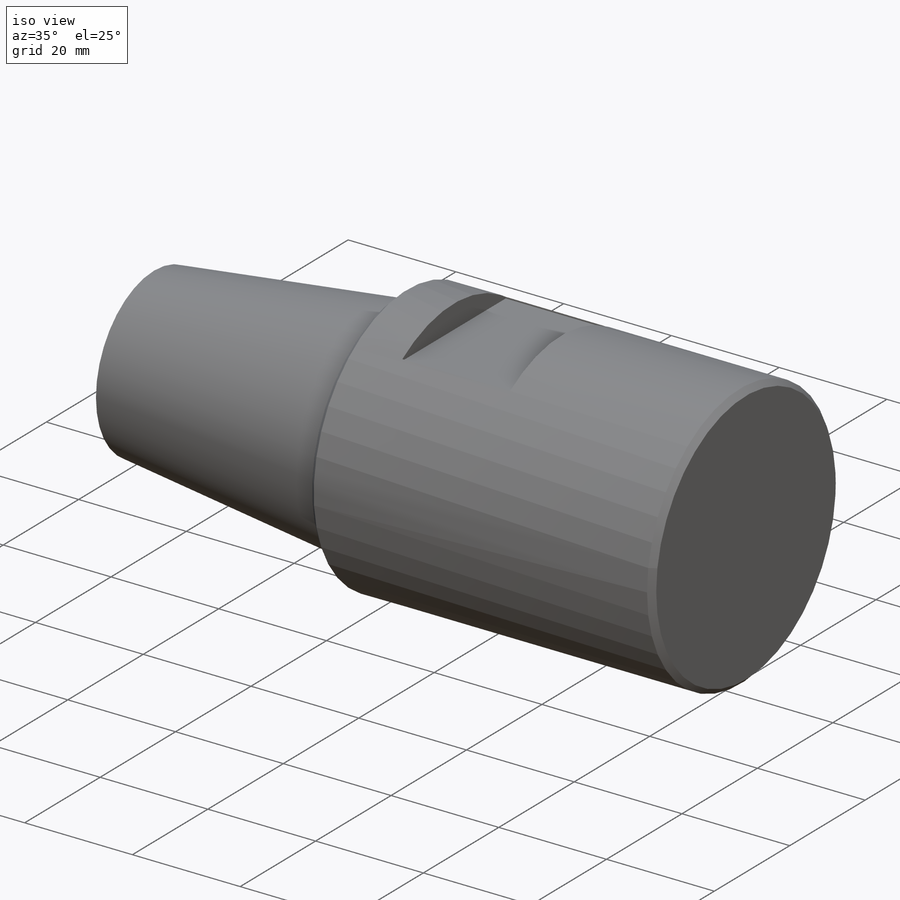
[diagram: iso view]
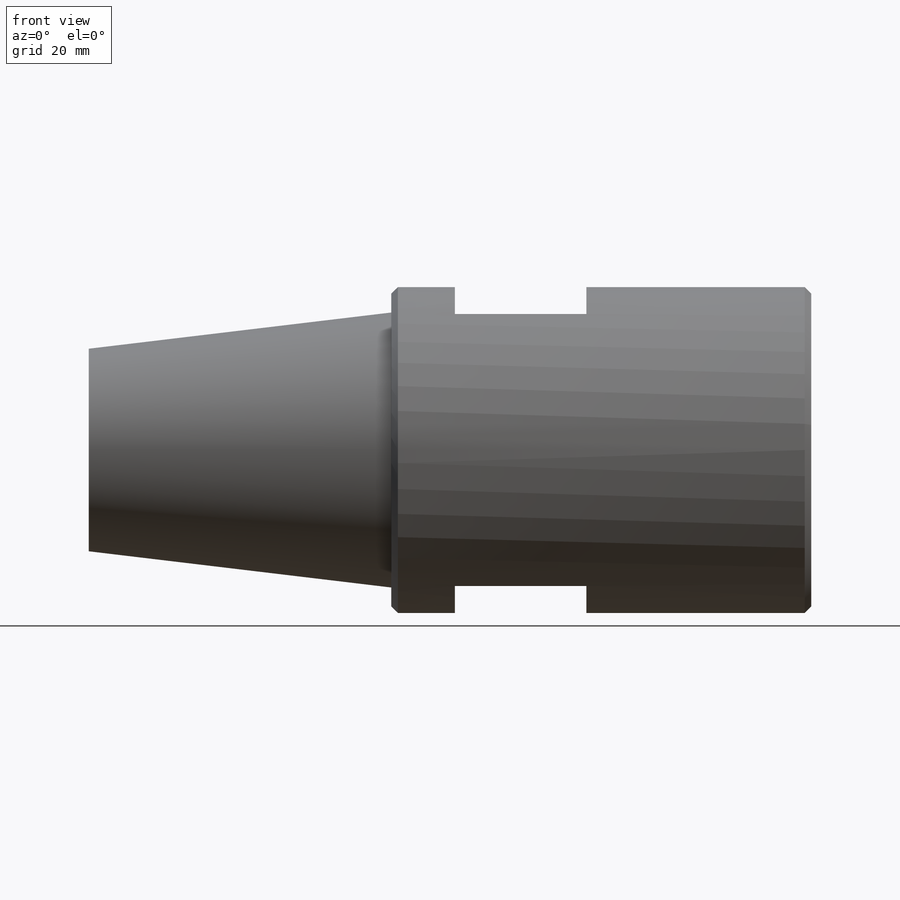
[diagram: front view]
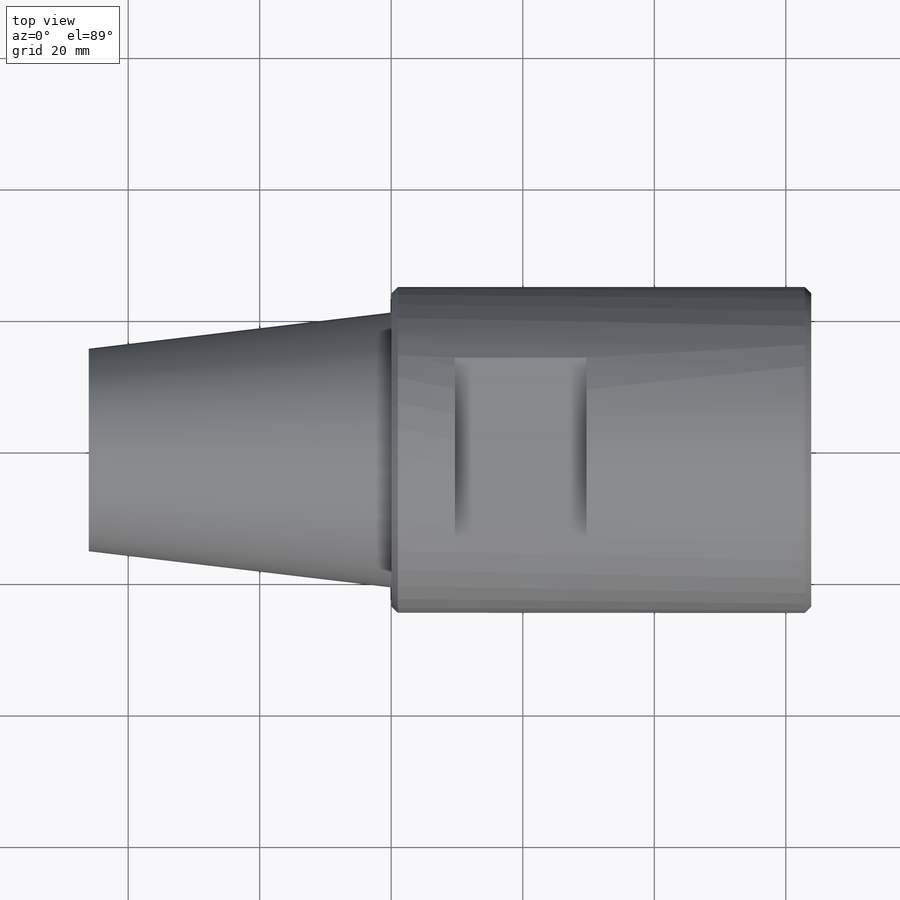
[diagram: top view]
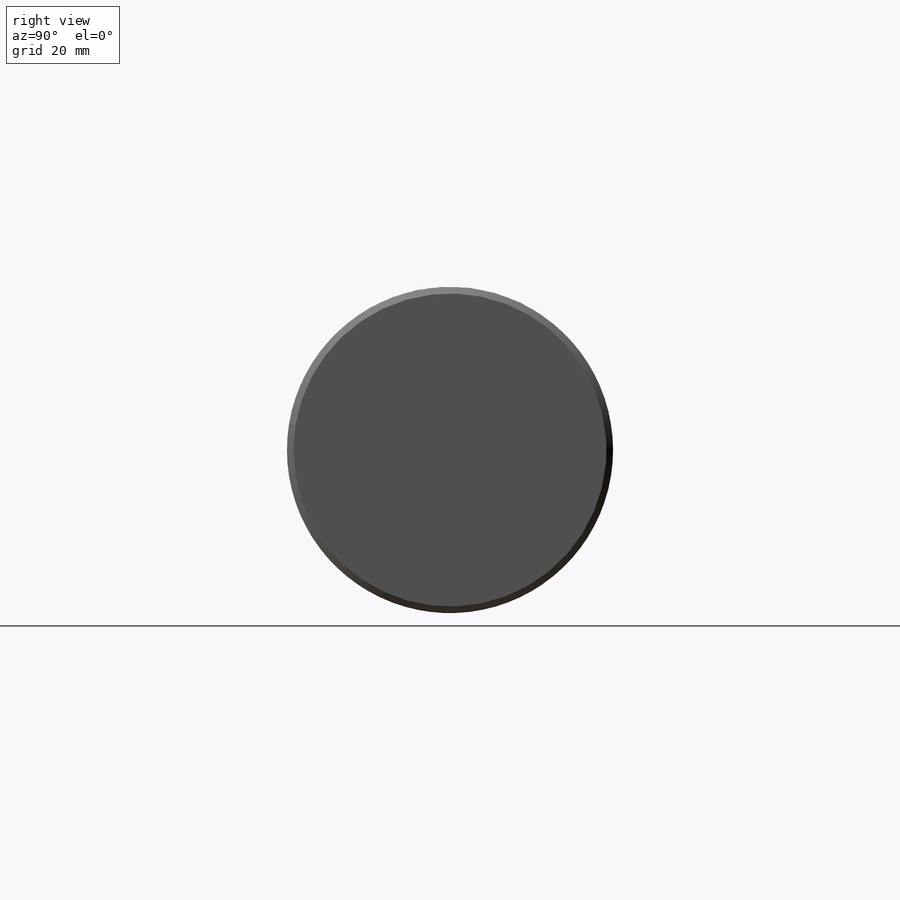
[diagram: right view]
SOLIDWORKS PART (.sldprt)
format: sldprt  version: not decoded by parser v0  size: 216,576 bytes
history: native  units: mm
features: plane x5, sketch x3, material x1, revolve x1, extrude x1, cut_extrude x1, pattern_circular x1, chamfer x1 (+9 scaffold rows collapsed)
feature tree (23):
  scaffold x9  (default folders/planes/origin — collapsed)
  material  "POM Acetalkopolymer"
  plane  "Ebene vorne"
  plane  "Ebene oben"
  plane  "Ebene rechts"
  sketch  "Skizze1"  dims[D1=46.0mm D2=15.4mm D3=20.905mm D4=0.0mm]
  revolve  "Rotation1"  Angle=360deg
  sketch  "Skizze2"  dims[D1=49.59mm]
  extrude  "Aufsatz-Linear austragen1"  Depth=63.87mm
  plane  "Ebene1"
  plane  "Ebene2"  Offset=24.795mm
  sketch  "Skizze8"  dims[c1.D1=~23.738256mm c1.D2=~10.648937mm c2.D1=20.0mm c2.D2=27.38mm c2.D3=13.69mm c2.D4=9.68mm c2.D5=~48.868515mm]
  cut_extrude  "Schnitt-Linear austragen1"  Depth=4.4mm
  pattern_circular  "Kreismuster1"  Count=2 Angle=360deg
  chamfer  "Fase1"  Distance=1mm Angle=45deg
decode coverage: 8 of 8 modeling features carry decoded parameters
note: ~ marks probable driven/reference dimensions
note: suppression state not decoded; provenance and decode notes live in map.json
